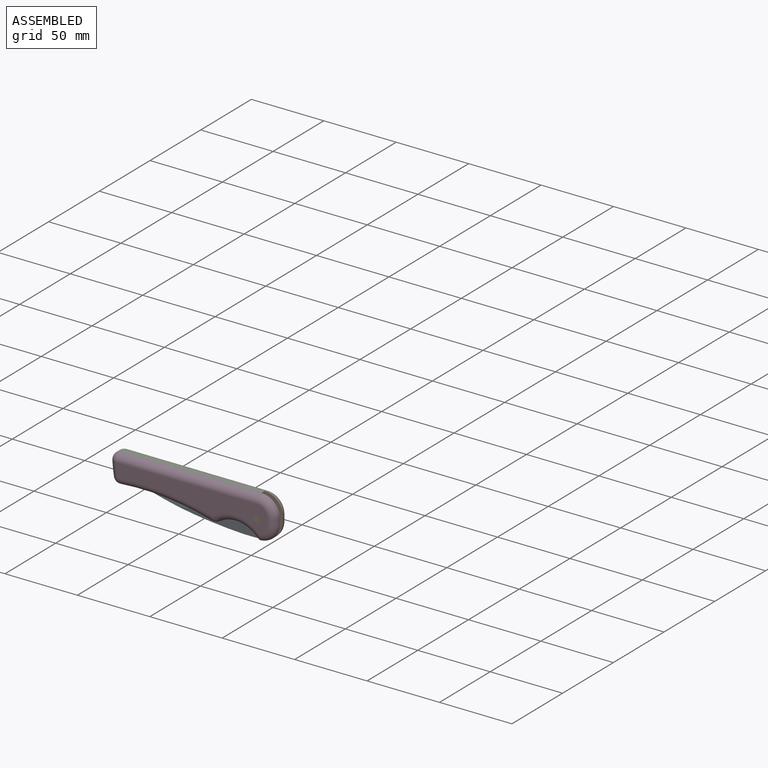
[diagram: assembled view]
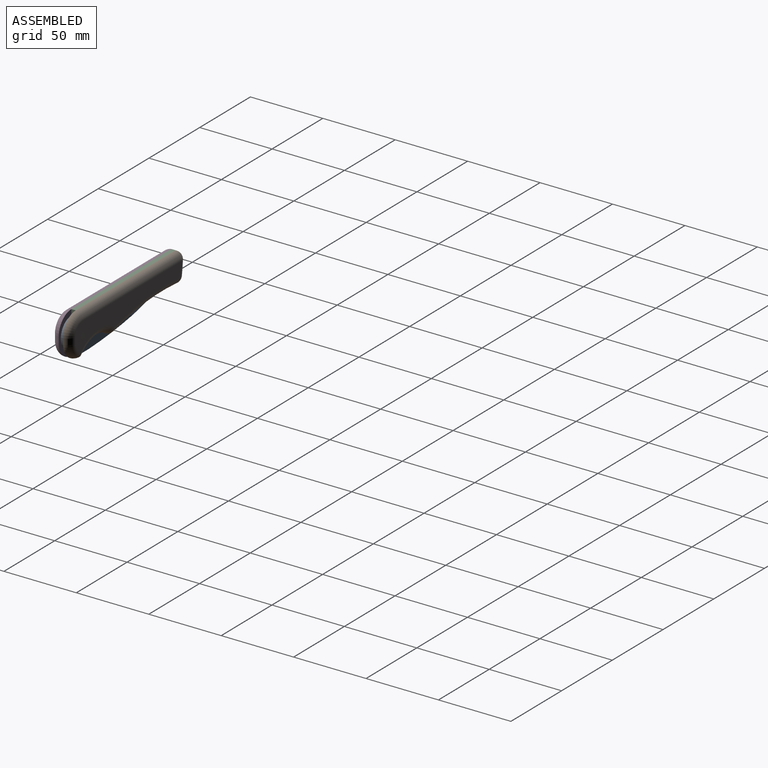
[diagram: assembled view, second angle]
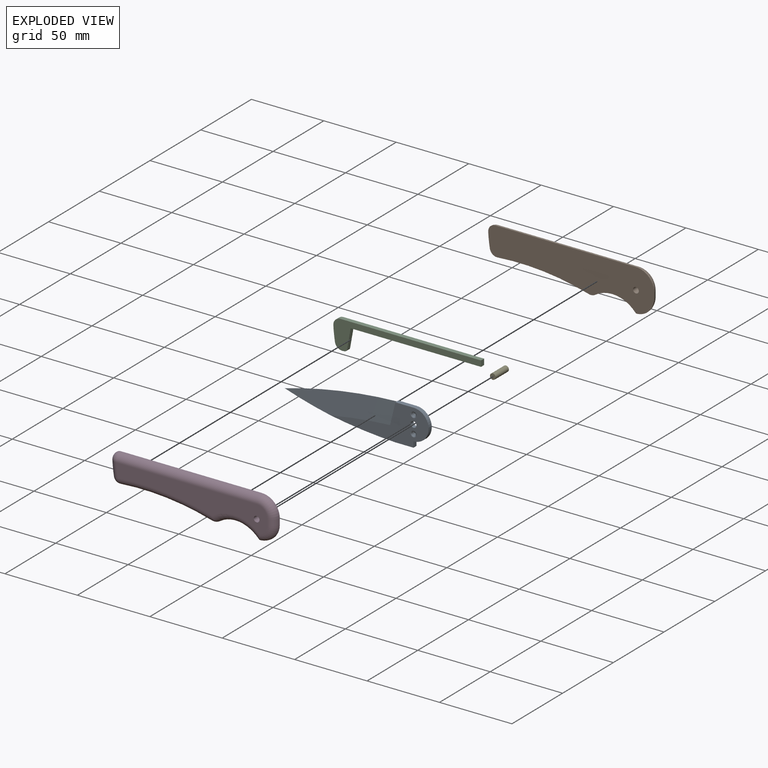
[diagram: exploded view]
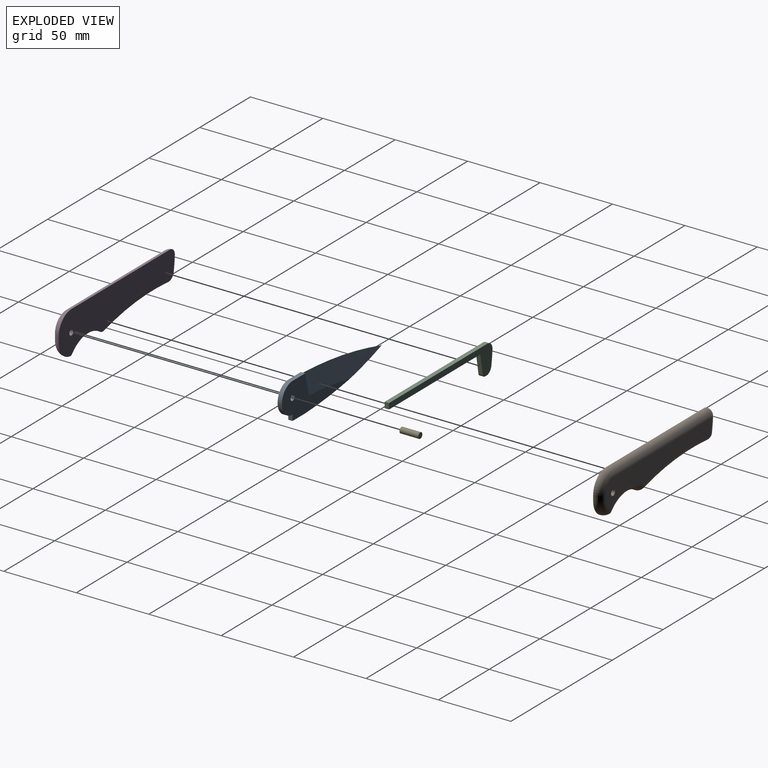
[diagram: exploded view, second angle]
ASSEMBLY  parts=5 mates=4
PART A: 18 faces, bbox 100.6x3.1x27 mm
  f0: cylinder r=330.25mm len=77.5mm, axis (0,1,0), area 185.4mm2, adj f1,f2,f3,f4,f10
  f1: plane 67.63x25mm, normal (0,-1,0), area 745.1mm2, adj f0,f3,f6,f7,f8,f9,f10,f11
  f2: plane 67.63x25mm, normal (0,1,0), area 770.2mm2, adj f0,f4,f5,f6,f7,f8,f10,f11
  f3: cone r=315.25mm half-angle=84.3deg, axis (0,1,0), area 920.9mm2, adj f0,f1,f4,f9
  f4: cone r=330.25mm half-angle=84.3deg, axis (0,-1,0), area 920.9mm2, adj f0,f2,f3,f5
  f5: plane 15.29x3.75mm, normal (0.97,0,-0.23), area 11.7mm2, adj f2,f4,f8
  f6: plane 4x3mm, normal (-1,0,0), area 12mm2, adj f1,f2,f7,f10
  f7: cylinder r=10.5mm len=21mm, axis (0,1,0), area 99mm2, adj f1,f2,f6,f8
  f8: plane 12.5x3mm, normal (0,0,-1), area 37.5mm2, adj f1,f2,f5,f7,f9
  f9: plane 15.29x3.75mm, normal (0.97,0,-0.23), area 11.7mm2, adj f1,f3,f8
  f10: plane 12.5x3mm, normal (0,0,1), area 37.5mm2, adj f0,f1,f2,f6
  f11: cylinder r=2mm len=4mm, axis (0,1,0), area 37.7mm2, adj f1,f2
  f12: cylinder r=1.5mm len=3mm, axis (0,-1,0), area 6.7mm2, adj f13,f14
  f13: cone r=1.5mm half-angle=60deg, axis (0,-1,0), area 6.3mm2, adj f1,f12
  f14: cone r=0mm half-angle=59deg, axis (0,-1,0), area 8.2mm2, adj f12
  f15: cylinder r=1.5mm len=3mm, axis (0,-1,0), area 6.7mm2, adj f16,f17
  f16: cone r=1.5mm half-angle=60deg, axis (0,-1,0), area 6.3mm2, adj f1,f15
  f17: cone r=0mm half-angle=59deg, axis (0,-1,0), area 8.2mm2, adj f15
PART B: 14 faces, bbox 115.7x8.6x31.1 mm
  f0: cylinder r=2mm len=5mm, axis (0,1,0), area 62.8mm2, adj f1,f2
  f1: plane 114.51x29mm, normal (0,-1,0), area 2455.6mm2, adj f0,f3,f4,f5,f6,f7,f8,f9
  f2: plane 104.5x18.74mm, normal (0,1,0), area 1207.5mm2, adj f0,f4,f5,f7,f8,f9,f11,f12
  f3: sphere r=5mm, area 40.7mm2, adj f1,f4,f5
  f4: torus R=89.41mm, axis (0,-1,0), area 78.6mm2, adj f1,f2,f3,f6
  f5: cylinder r=5mm len=97mm, axis (-1,0,0), area 761.9mm2, adj f1,f2,f3,f7
  f6: sphere r=5mm, area 37.2mm2, adj f1,f4,f8
  f7: torus R=7.5mm, axis (0,-1,0), area 131.8mm2, adj f1,f2,f5,f9
  f8: torus R=185mm, axis (0,-1,0), area 505.9mm2, adj f1,f2,f6,f10
  f9: cylinder r=5mm len=5mm, axis (0,0,1), area 31.4mm2, adj f1,f2,f7,f11
  f10: sphere r=5mm, area 21.9mm2, adj f1,f8,f12
  f11: torus R=7.5mm, axis (0,-1,0), area 123.1mm2, adj f1,f2,f9,f13
  f12: torus R=26mm, axis (0,-1,0), area 257.3mm2, adj f1,f2,f10,f13
  f13: bspline ~6.08x5.27mm, area 4.8mm2, adj f1,f11,f12
PART C: 11 faces, bbox 102x3x19.6 mm
  f0: cylinder r=180mm len=3mm, axis (0,1,0), area 3.8mm2, adj f6,f7,f8,f10
  f1: plane 13.83x3mm, normal (0.98,0,-0.17), area 42.1mm2, adj f2,f6,f7,f10
  f2: plane 90x3mm, normal (0,0,-1), area 270mm2, adj f1,f3,f6,f7
  f3: plane 4x3mm, normal (1,0,0), area 12mm2, adj f2,f4,f6,f7
  f4: plane 97x3mm, normal (0,0,1), area 291mm2, adj f3,f6,f7,f9
  f5: cylinder r=94.41mm len=10.13mm, axis (0,1,0), area 30.6mm2, adj f6,f7,f8,f9
  f6: plane 102x19.59mm, normal (0,-1,0), area 553mm2, adj f0,f1,f2,f3,f4,f5,f8,f9
  f7: plane 102x19.59mm, normal (0,1,0), area 553mm2, adj f0,f1,f2,f3,f4,f5,f8,f9
  f8: cylinder r=5mm len=5.34mm, axis (0,-1,0), area 22.3mm2, adj f0,f5,f6,f7
  f9: cylinder r=5mm len=5.28mm, axis (0,1,0), area 24.4mm2, adj f4,f5,f6,f7
  f10: cylinder r=2mm len=3mm, axis (0,1,0), area 7.9mm2, adj f0,f1,f6,f7
PART D: 14 faces, bbox 115.7x8.6x31.1 mm
  f0: cylinder r=2mm len=5mm, axis (0,1,0), area 62.8mm2, adj f1,f2
  f1: plane 104.5x18.74mm, normal (0,-1,0), area 1207.5mm2, adj f0,f3,f6,f7,f8,f10,f11,f12
  f2: plane 114.51x29mm, normal (0,1,0), area 2455.6mm2, adj f0,f3,f4,f5,f6,f7,f8,f9
  f3: torus R=89.41mm, axis (0,-1,0), area 78.6mm2, adj f1,f2,f4,f5
  f4: sphere r=5mm, area 40.7mm2, adj f2,f3,f6
  f5: sphere r=5mm, area 37.2mm2, adj f2,f3,f7
  f6: cylinder r=5mm len=97mm, axis (1,0,0), area 761.9mm2, adj f1,f2,f4,f8
  f7: torus R=185mm, axis (0,-1,0), area 505.9mm2, adj f1,f2,f5,f9
  f8: torus R=7.5mm, axis (0,-1,0), area 131.8mm2, adj f1,f2,f6,f10
  f9: sphere r=5mm, area 21.9mm2, adj f2,f7,f11
  f10: cylinder r=5mm len=5mm, axis (0,0,-1), area 31.4mm2, adj f1,f2,f8,f12
  f11: torus R=26mm, axis (0,-1,0), area 257.3mm2, adj f1,f2,f9,f13
  f12: torus R=7.5mm, axis (0,-1,0), area 123.1mm2, adj f1,f2,f10,f13
  f13: bspline ~6.08x5.27mm, area 4.8mm2, adj f2,f11,f12
PART E: 3 faces, bbox 4x13x4 mm
  f0: cylinder r=2mm len=13mm, axis (0,1,0), area 163.4mm2, adj f1,f2
  f1: plane 4x4mm, normal (0,-1,0), area 12.6mm2, adj f0
  f2: plane 4x4mm, normal (0,1,0), area 12.6mm2, adj f0
PLACE A rot(axis=(0,1,0),180deg) t=(-17.76,-29.15,-56.18)mm
PLACE B t=(-5.26,-24.15,-64.68)mm
PLACE C t=(-5.26,-29.15,-64.68)mm
PLACE D t=(-5.26,-32.15,-64.68)mm fixed
PLACE E t=(-5.26,-24.15,-66.68)mm
MATE fastened C.f6 <-> D.f2  axis (0,-1,0) through (-5.26,-32.15,-52.18)mm
MATE revolute A.f7 <-> D.f0  axis (0,-1,0) through (-5.26,-32.15,-66.68)mm
MATE fastened C.f7 <-> B.f1  axis (0,1,0) through (-5.26,-29.15,-52.18)mm
MATE fastened E.f0 <-> D.f0  axis (0,-1,0) through (-5.26,-37.15,-66.68)mm
